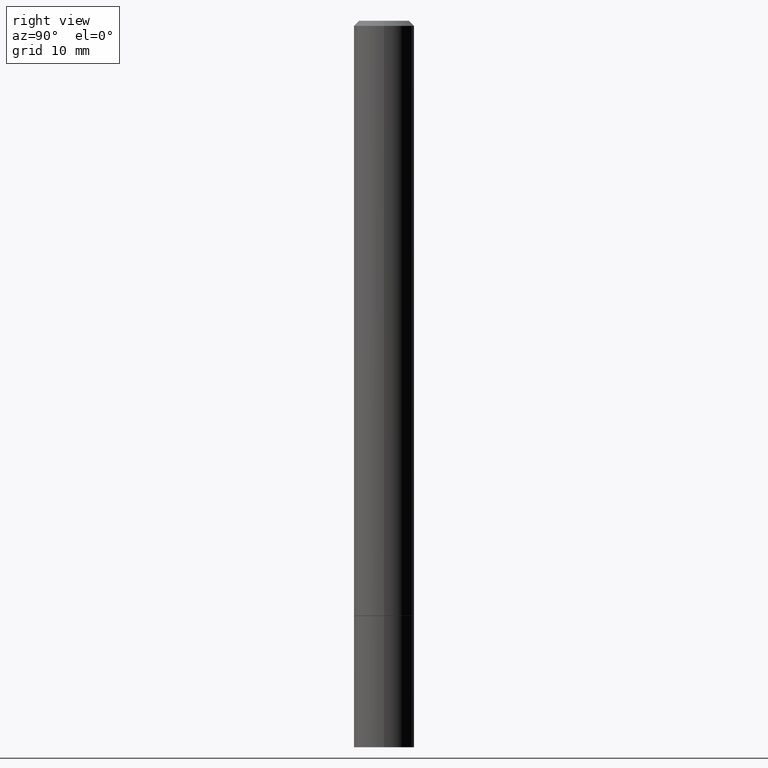
[diagram: clean part render]
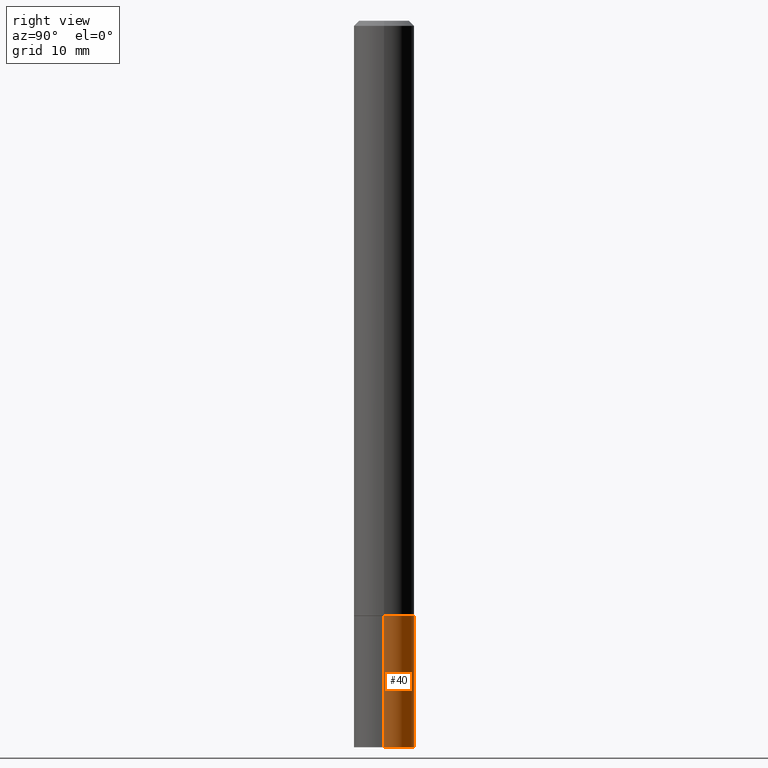
[diagram: same view with one face highlighted and labeled with its STEP entity id]
A machine part, right view. The second image highlights one B-rep face of the part: STEP entity #40.
In plain terms, the highlighted cylindrical surface (edge-blend (fillet) strip) has radius 2.9997 mm, axis along (-0, 0, 1).
Its self-contained STEP definition (entity closure, byte-faithful):
#5 = EDGE_LOOP ( 'NONE', ( #35, #149, #285, #202 ) ) ;
#17 = VERTEX_POINT ( 'NONE', #240 ) ;
#35 = ORIENTED_EDGE ( 'NONE', *, *, #54, .T. ) ;
#40 = ADVANCED_FACE ( 'NONE', ( #244 ), #355, .T. ) ;
#44 = CIRCLE ( 'NONE', #92, 0.1180999999999999966 ) ;
#47 = DIRECTION ( 'NONE',  ( 1.000000000000000000, -6.982962677686266711E-15, 4.876176775795936353E-29 ) ) ;
#54 = EDGE_CURVE ( 'NONE', #195, #17, #44, .T. ) ;
#58 = EDGE_CURVE ( 'NONE', #251, #359, #258, .T. ) ;
#67 = EDGE_CURVE ( 'NONE', #17, #359, #304, .T. ) ;
#73 = DIRECTION ( 'NONE',  ( -2.445468806185136597E-29, 3.491481338843145583E-15, 1.000000000000000000 ) ) ;
#81 = DIRECTION ( 'NONE',  ( 1.000000000000000000, -6.982962677686273021E-15, 0.000000000000000000 ) ) ;
#92 = AXIS2_PLACEMENT_3D ( 'NONE', #133, #73, #81 ) ;
#101 = EDGE_CURVE ( 'NONE', #195, #251, #316, .T. ) ;
#102 = DIRECTION ( 'NONE',  ( -2.445468806185136597E-29, 3.491481338843145583E-15, 1.000000000000000000 ) ) ;
#116 = CARTESIAN_POINT ( 'NONE',  ( 0.1180999999999999966, -8.246878922347480654E-16, 5.758764772215000440E-30 ) ) ;
#133 = CARTESIAN_POINT ( 'NONE',  ( 6.931925878012387517E-29, -9.896953003084780885E-15, -2.834600000000000009 ) ) ;
#146 = DIRECTION ( 'NONE',  ( -2.445468806185136877E-29, 3.491481338843145188E-15, 1.000000000000000000 ) ) ;
#149 = ORIENTED_EDGE ( 'NONE', *, *, #67, .T. ) ;
#158 = CARTESIAN_POINT ( 'NONE',  ( 0.000000000000000000, 0.000000000000000000, 0.000000000000000000 ) ) ;
#162 = DIRECTION ( 'NONE',  ( -2.445468806185136597E-29, 3.491481338843145583E-15, 1.000000000000000000 ) ) ;
#187 = CARTESIAN_POINT ( 'NONE',  ( -0.1180999999999999966, 8.391509709326782957E-16, -5.809262341591043784E-30 ) ) ;
#192 = VECTOR ( 'NONE', #356, 39.37007874015748143 ) ;
#195 = VERTEX_POINT ( 'NONE', #245 ) ;
#202 = ORIENTED_EDGE ( 'NONE', *, *, #101, .F. ) ;
#226 = VECTOR ( 'NONE', #146, 39.37007874015748143 ) ;
#237 = AXIS2_PLACEMENT_3D ( 'NONE', #158, #102, #47 ) ;
#240 = CARTESIAN_POINT ( 'NONE',  ( -0.1180999999999999966, -8.164331957542140874E-15, -2.834600000000000009 ) ) ;
#243 = DIRECTION ( 'NONE',  ( 1.000000000000000000, -6.982962677686273021E-15, 0.000000000000000000 ) ) ;
#244 = FACE_OUTER_BOUND ( 'NONE', #5, .T. ) ;
#245 = CARTESIAN_POINT ( 'NONE',  ( 0.1180999999999999966, -1.072164089531952915E-14, -2.834600000000000009 ) ) ;
#246 = CARTESIAN_POINT ( 'NONE',  ( -0.1180999999999999966, -8.164331957542140874E-15, -2.322799999999999976 ) ) ;
#251 = VERTEX_POINT ( 'NONE', #264 ) ;
#258 = CIRCLE ( 'NONE', #352, 0.1180999999999999966 ) ;
#264 = CARTESIAN_POINT ( 'NONE',  ( 0.1180999999999999966, -8.934700746099607097E-15, -2.322799999999999976 ) ) ;
#285 = ORIENTED_EDGE ( 'NONE', *, *, #58, .F. ) ;
#304 = LINE ( 'NONE', #187, #192 ) ;
#316 = LINE ( 'NONE', #116, #226 ) ;
#330 = CARTESIAN_POINT ( 'NONE',  ( 5.680334943006835158E-29, -8.110012853864858834E-15, -2.322799999999999976 ) ) ;
#352 = AXIS2_PLACEMENT_3D ( 'NONE', #330, #162, #243 ) ;
#355 = CYLINDRICAL_SURFACE ( 'NONE', #237, 0.1180999999999999966 ) ;
#356 = DIRECTION ( 'NONE',  ( -2.445468806185136877E-29, 3.491481338843145188E-15, 1.000000000000000000 ) ) ;
#359 = VERTEX_POINT ( 'NONE', #246 ) ;